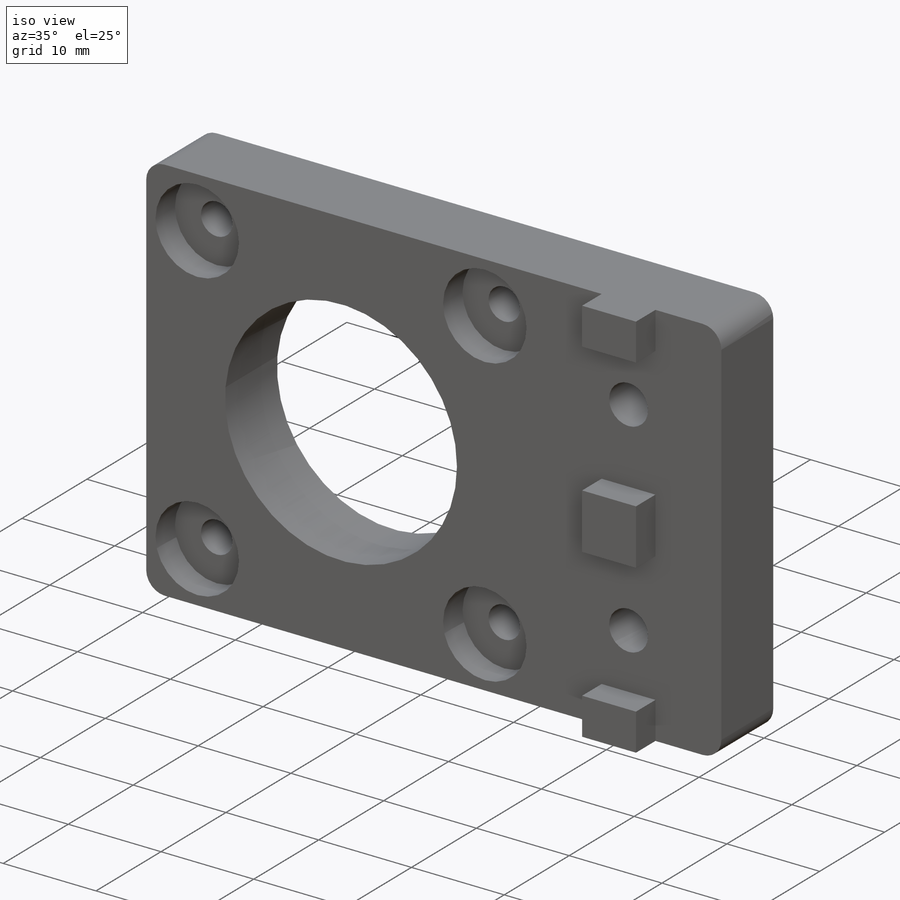
[diagram: iso view]
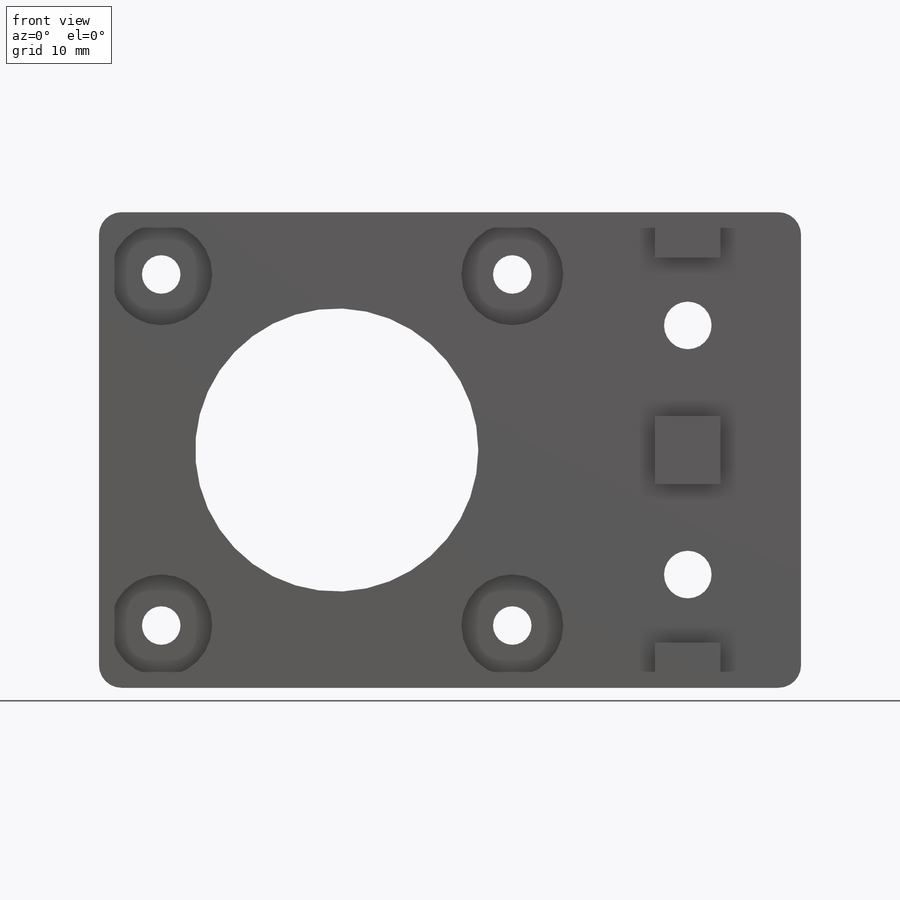
[diagram: front view]
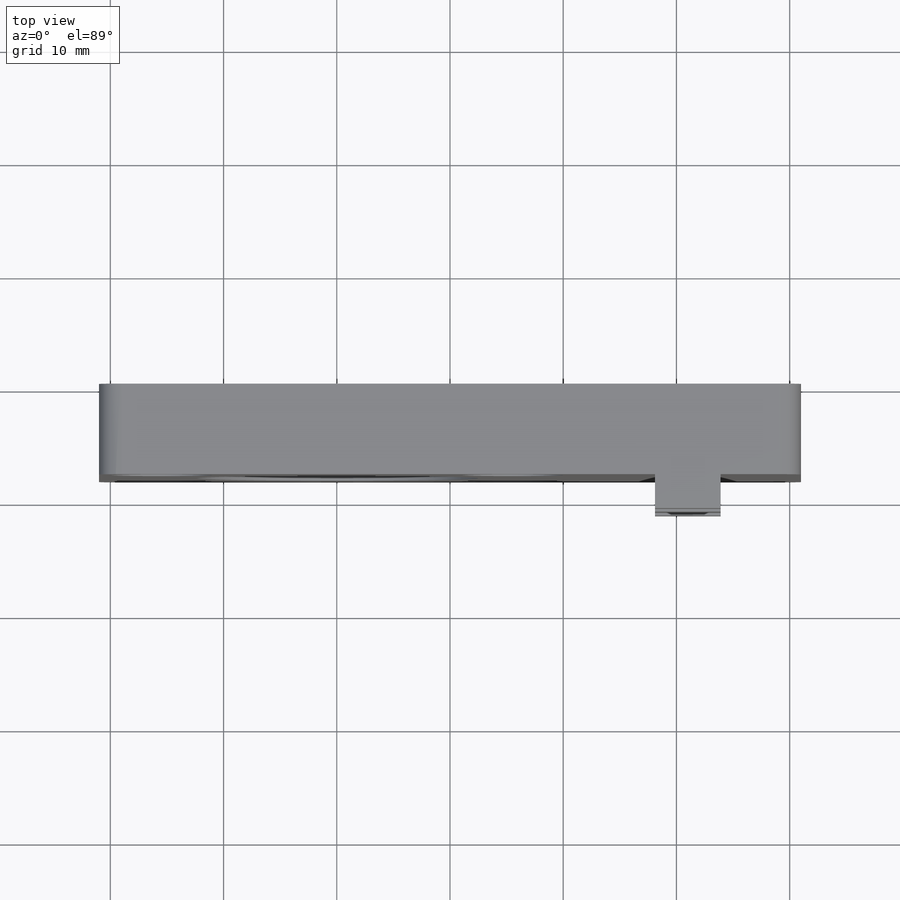
[diagram: top view]
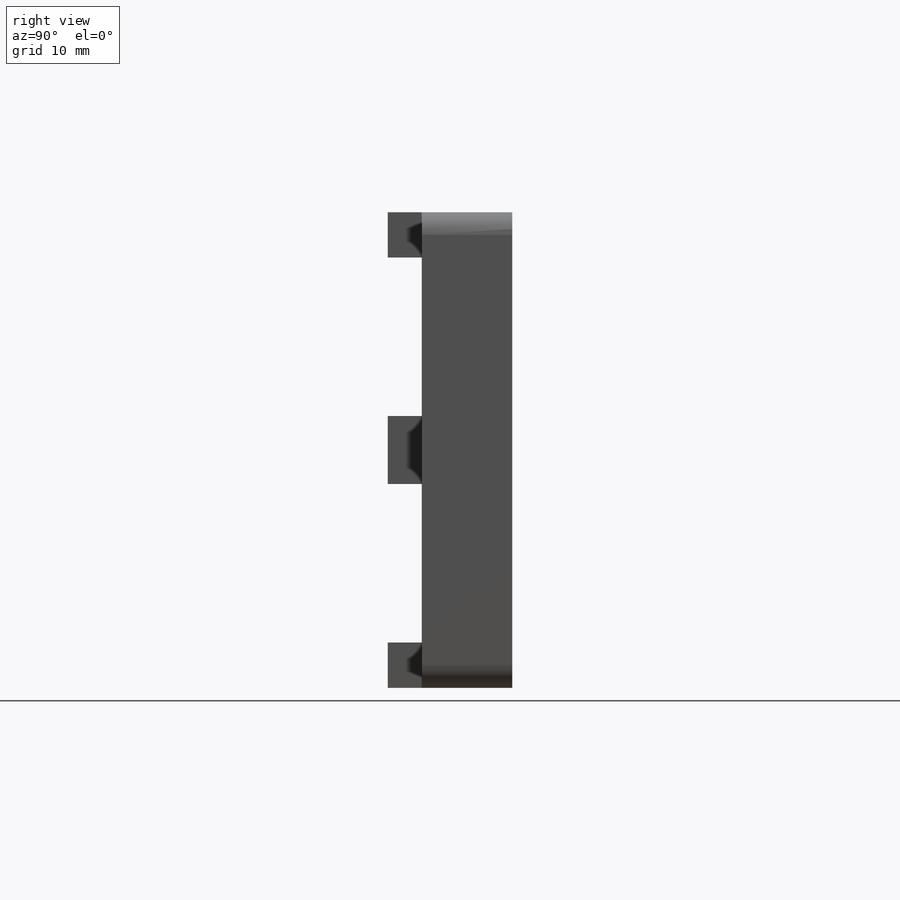
[diagram: right view]
SOLIDWORKS PART (.sldprt)
format: sldprt  version: not decoded by parser v0  size: 249,344 bytes
history: native  units: mm
features: sketch x4, plane x3, extrude x2, cut_extrude x2, material x1, fillet x1 (+8 scaffold rows collapsed)
feature tree (21):
  scaffold x8  (default folders/planes/origin — collapsed)
  material  "Material <not specified>"
  plane  "Plan de face"
  plane  "Plan de dessus"
  plane  "Plan de droite"
  sketch  "Esquisse1"  dims[D1=42.0mm D2=62.0mm D3=31.0mm D4=21.0mm]
  extrude  "Boss.-Extru.1"  Depth=8mm
  sketch  "Esquisse2"  dims[D1=4.2mm D2=4.2mm D7=25.0mm D10=3.4mm D11=3.4mm D12=3.4mm D13=3.4mm D3=10.0mm D4=10.0mm D5=10.0mm D6=10.0mm D8=21.0mm D9=21.0mm D14=5.5mm D15=5.5mm D16=5.5mm D17=5.5mm D18=5.5mm D19=5.5mm D20=31.0mm D21=31.0mm]
  cut_extrude  "Enlèv. mat.-Extru.1"  [1 undecoded]
  sketch  "Esquisse3"  dims[D1=5.8mm D2=7.1mm D3=4.0mm D4=4.0mm D5=6.0mm D6=18.0mm D7=5.8mm]
  extrude  "Boss.-Extru.2"  Depth=3mm
  fillet  "Congé1"  Radius=2mm
  sketch  "Esquisse4"  dims[D1=9.0mm]
  cut_extrude  "Enlèv. mat.-Extru.2"  Depth=3mm
decode coverage: 8 of 9 modeling features carry decoded parameters
note: 1 parameter value undecoded
note: suppression state not decoded; provenance and decode notes live in map.json
